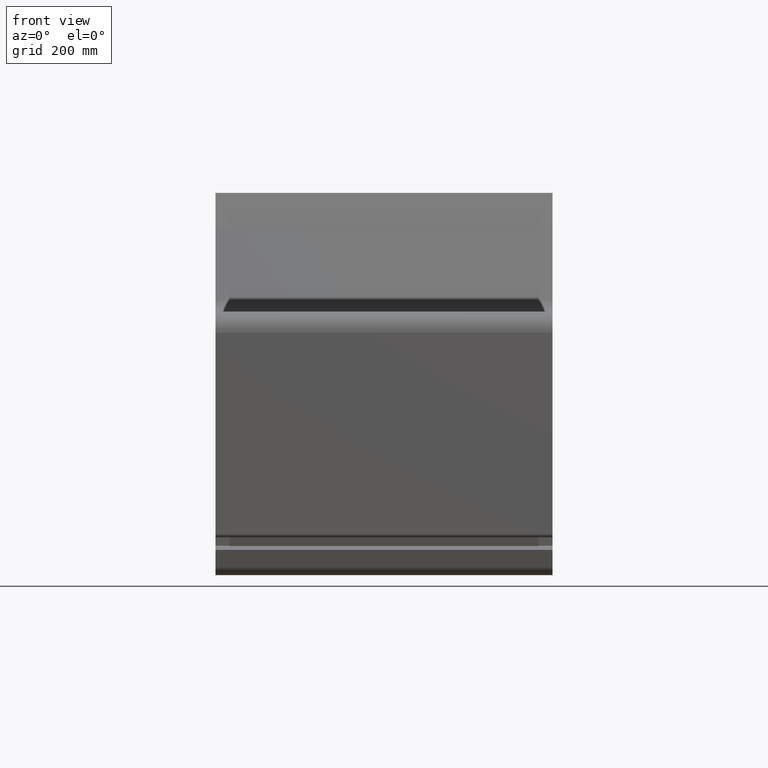
[diagram: clean part render]
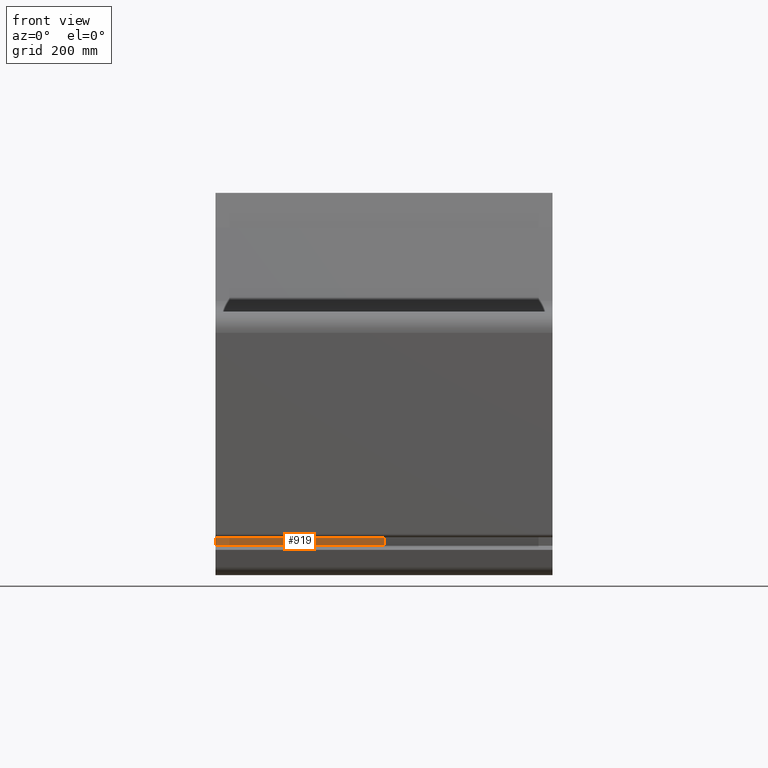
[diagram: same view with one face highlighted and labeled with its STEP entity id]
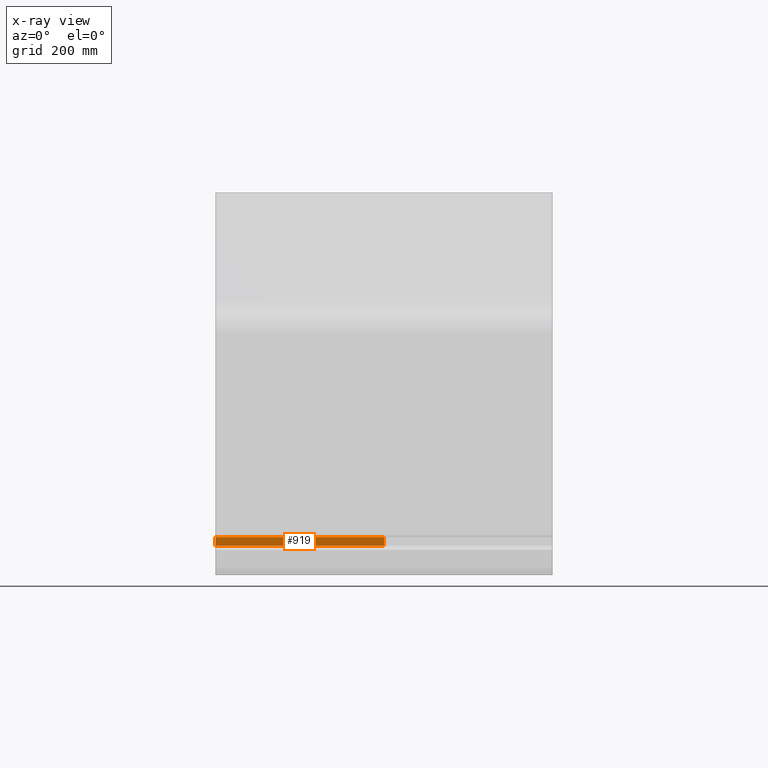
[diagram: x-ray of the same camera — body ghosted, the highlighted face saturated]
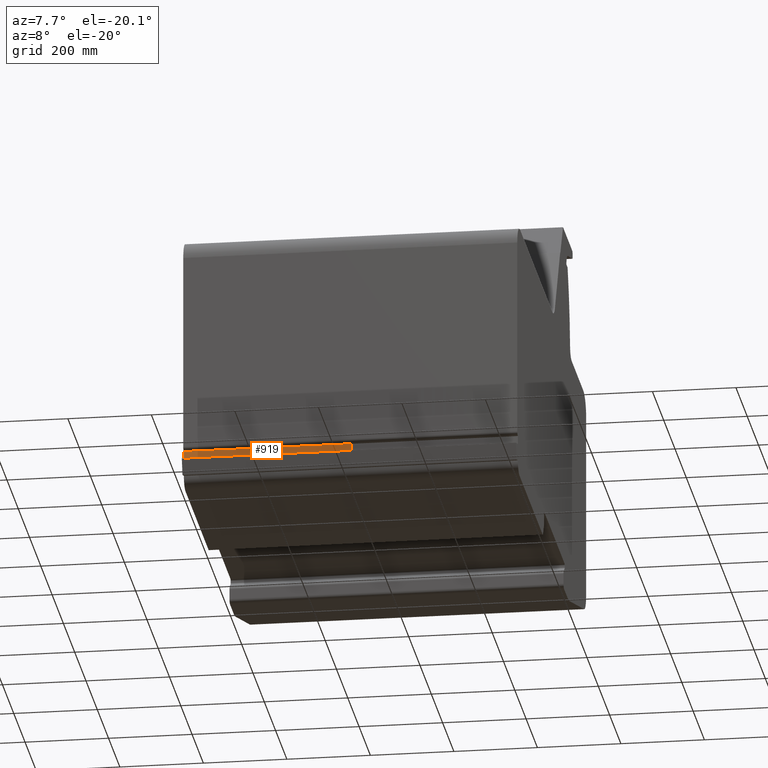
[diagram: same view with one face highlighted and labeled with its STEP entity id]
A machine part, front view. The second image highlights one B-rep face of the part: STEP entity #919.
The next image is the same camera in x-ray: the body ghosted, the highlighted face saturated — about 0% of this face is hidden behind the body in this view.
A second angle (auxiliary view) of the same face is appended — the face is thin or edge-on in the first view.
In plain terms, the highlighted planar face has unit normal (0, -1, 0).
Its self-contained STEP definition (entity closure, byte-faithful):
#863=CARTESIAN_POINT('',(400.0,-823.99999999999977,2.500000000000231));
#864=VERTEX_POINT('',#863);
#871=CARTESIAN_POINT('',(0.0,-823.99999999999977,2.500000000000231));
#872=VERTEX_POINT('',#871);
#873=CARTESIAN_POINT('',(0.0,-823.99999999999977,2.500000000000231));
#874=DIRECTION('',(1.0,0.0,0.0));
#875=VECTOR('',#874,400.0);
#876=LINE('',#873,#875);
#877=EDGE_CURVE('',#872,#864,#876,.T.);
#889=CARTESIAN_POINT('',(0.0,-823.99999999999977,2.500000000000231));
#890=DIRECTION('',(0.0,-1.0,0.0));
#891=DIRECTION('',(0.0,0.0,-1.0));
#892=AXIS2_PLACEMENT_3D('',#889,#890,#891);
#893=PLANE('',#892);
#894=CARTESIAN_POINT('',(400.0,-823.99999999999977,22.5));
#895=VERTEX_POINT('',#894);
#896=CARTESIAN_POINT('',(400.0,-823.99999999999977,2.500000000000231));
#897=DIRECTION('',(0.0,0.0,1.0));
#898=VECTOR('',#897,19.999999999999769);
#899=LINE('',#896,#898);
#900=EDGE_CURVE('',#864,#895,#899,.T.);
#901=ORIENTED_EDGE('',*,*,#900,.T.);
#902=CARTESIAN_POINT('',(0.0,-823.99999999999977,22.5));
#903=VERTEX_POINT('',#902);
#904=CARTESIAN_POINT('',(0.0,-823.99999999999977,22.5));
#905=DIRECTION('',(1.0,0.0,0.0));
#906=VECTOR('',#905,400.0);
#907=LINE('',#904,#906);
#908=EDGE_CURVE('',#903,#895,#907,.T.);
#909=ORIENTED_EDGE('',*,*,#908,.F.);
#910=CARTESIAN_POINT('',(0.0,-823.99999999999977,22.5));
#911=DIRECTION('',(0.0,0.0,-1.0));
#912=VECTOR('',#911,19.999999999999769);
#913=LINE('',#910,#912);
#914=EDGE_CURVE('',#903,#872,#913,.T.);
#915=ORIENTED_EDGE('',*,*,#914,.T.);
#916=ORIENTED_EDGE('',*,*,#877,.T.);
#917=EDGE_LOOP('',(#901,#909,#915,#916));
#918=FACE_OUTER_BOUND('',#917,.T.);
#919=ADVANCED_FACE('',(#918),#893,.T.);